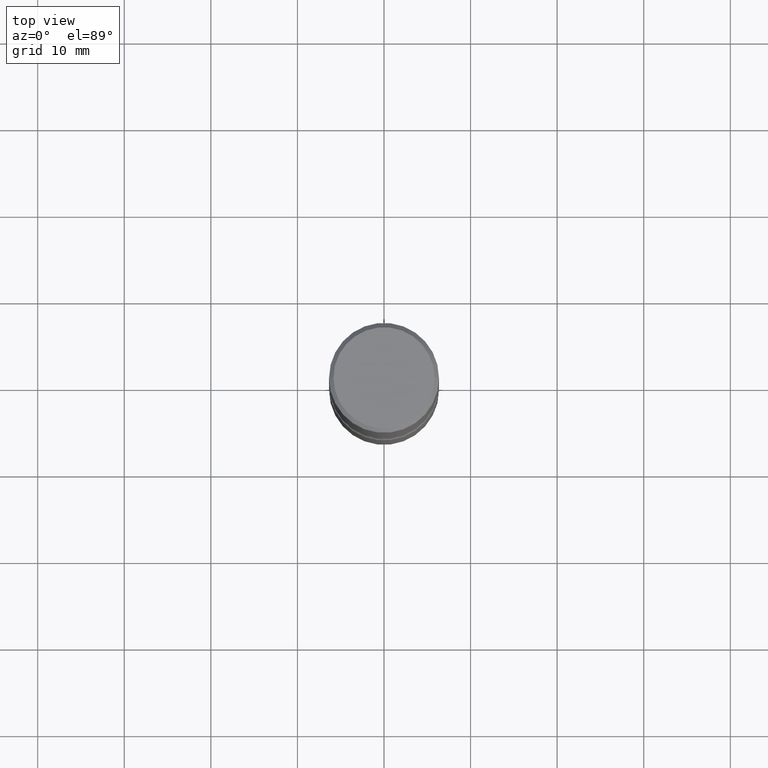
[diagram: clean part render]
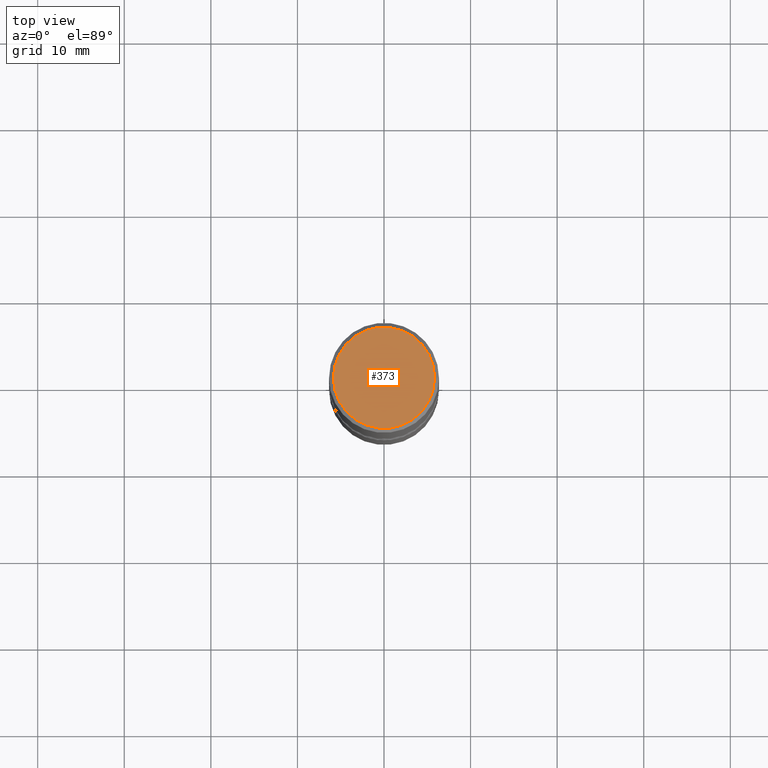
[diagram: same view with one face highlighted and labeled with its STEP entity id]
A machine part, top view. The second image highlights one B-rep face of the part: STEP entity #373.
In plain terms, the highlighted planar face has unit normal (0, -0, -1).
Its self-contained STEP definition (entity closure, byte-faithful):
#21 = CARTESIAN_POINT ( 'NONE',  ( -0.2300000000000002320, 1.640996229256274294E-15, -3.414809992081464243E-17 ) ) ;
#23 = FACE_OUTER_BOUND ( 'NONE', #135, .T. ) ;
#37 = EDGE_CURVE ( 'NONE', #556, #250, #112, .T. ) ;
#64 = PLANE ( 'NONE',  #291 ) ;
#65 = DIRECTION ( 'NONE',  ( 1.000000000000000000, -6.982962677686266711E-15, 4.875813741439094729E-29 ) ) ;
#83 = CARTESIAN_POINT ( 'NONE',  ( 8.350811314681758556E-46, -1.192274536304357760E-31, -3.414809992080329023E-17 ) ) ;
#112 = CIRCLE ( 'NONE', #345, 0.2300000000000002320 ) ;
#135 = EDGE_LOOP ( 'NONE', ( #179, #214 ) ) ;
#179 = ORIENTED_EDGE ( 'NONE', *, *, #493, .T. ) ;
#212 = DIRECTION ( 'NONE',  ( 1.000000000000000000, -6.982962677686266711E-15, 4.875813741439094729E-29 ) ) ;
#214 = ORIENTED_EDGE ( 'NONE', *, *, #37, .T. ) ;
#250 = VERTEX_POINT ( 'NONE', #21 ) ;
#265 = AXIS2_PLACEMENT_3D ( 'NONE', #83, #559, #212 ) ;
#286 = DIRECTION ( 'NONE',  ( -1.000000000000000000, 6.982962677686265922E-15, -4.876176775795935793E-29 ) ) ;
#291 = AXIS2_PLACEMENT_3D ( 'NONE', #370, #295, #286 ) ;
#295 = DIRECTION ( 'NONE',  ( 2.438088387897960049E-29, -3.491481338843145188E-15, -1.000000000000000000 ) ) ;
#330 = CIRCLE ( 'NONE', #265, 0.2300000000000002320 ) ;
#345 = AXIS2_PLACEMENT_3D ( 'NONE', #500, #454, #65 ) ;
#348 = CARTESIAN_POINT ( 'NONE',  ( 0.2300000000000002320, -1.681434332853601180E-15, -3.414809992079179628E-17 ) ) ;
#370 = CARTESIAN_POINT ( 'NONE',  ( 1.606081415867843039E-15, 0.2300000000000002320, -8.201147578943259875E-16 ) ) ;
#373 = ADVANCED_FACE ( 'NONE', ( #23 ), #64, .F. ) ;
#454 = DIRECTION ( 'NONE',  ( -2.445468806185136597E-29, 3.491481338843145583E-15, 1.000000000000000000 ) ) ;
#493 = EDGE_CURVE ( 'NONE', #250, #556, #330, .T. ) ;
#500 = CARTESIAN_POINT ( 'NONE',  ( 8.350811314681758556E-46, -1.192274536304357760E-31, -3.414809992080329023E-17 ) ) ;
#556 = VERTEX_POINT ( 'NONE', #348 ) ;
#559 = DIRECTION ( 'NONE',  ( -2.445468806185136597E-29, 3.491481338843145583E-15, 1.000000000000000000 ) ) ;